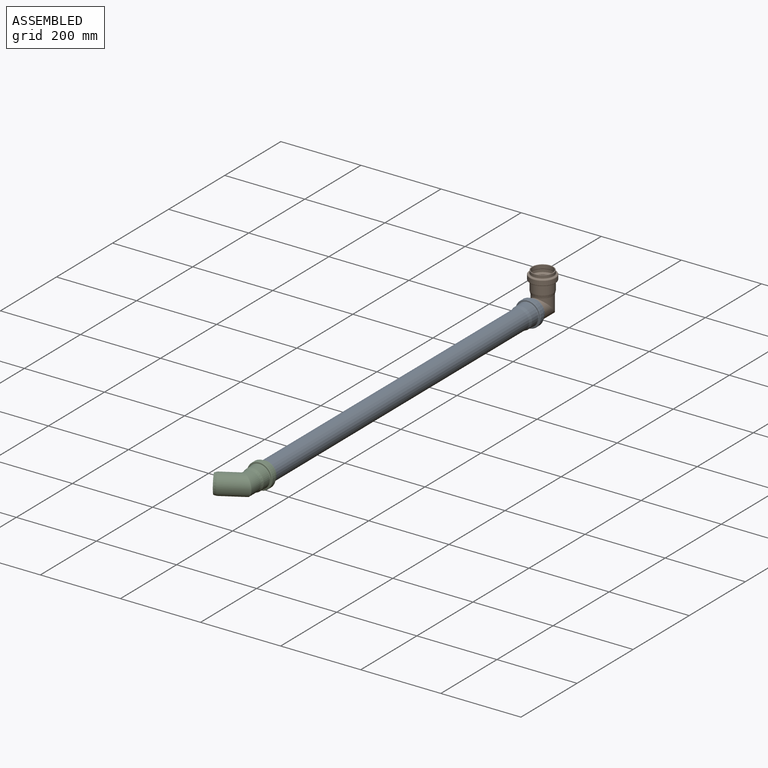
[diagram: assembled view]
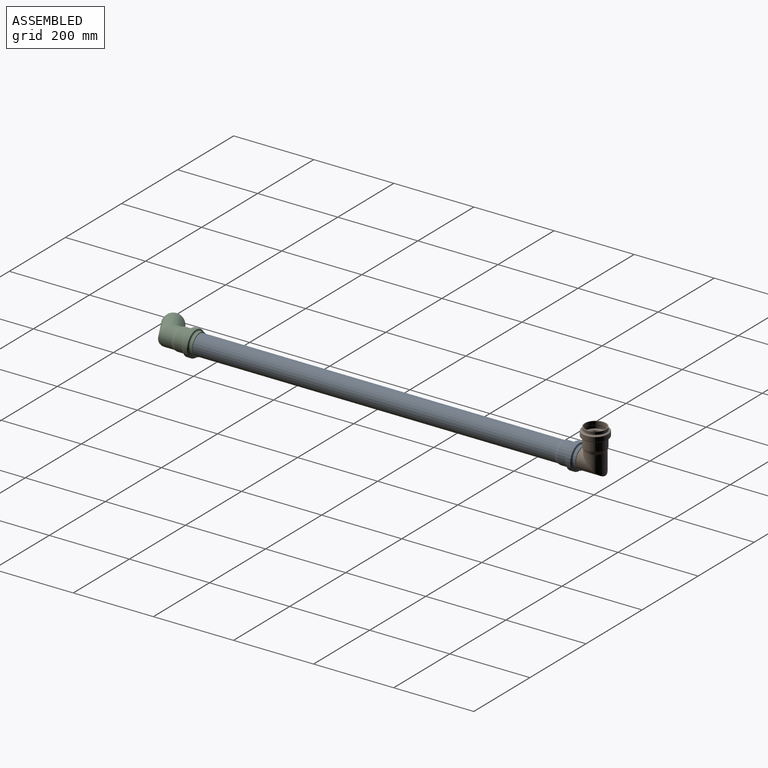
[diagram: assembled view, second angle]
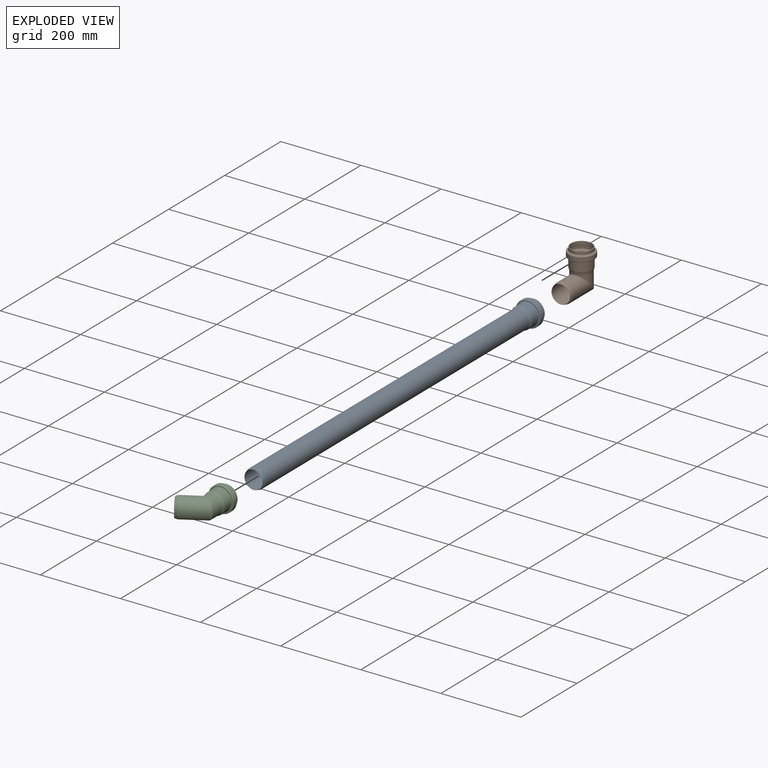
[diagram: exploded view]
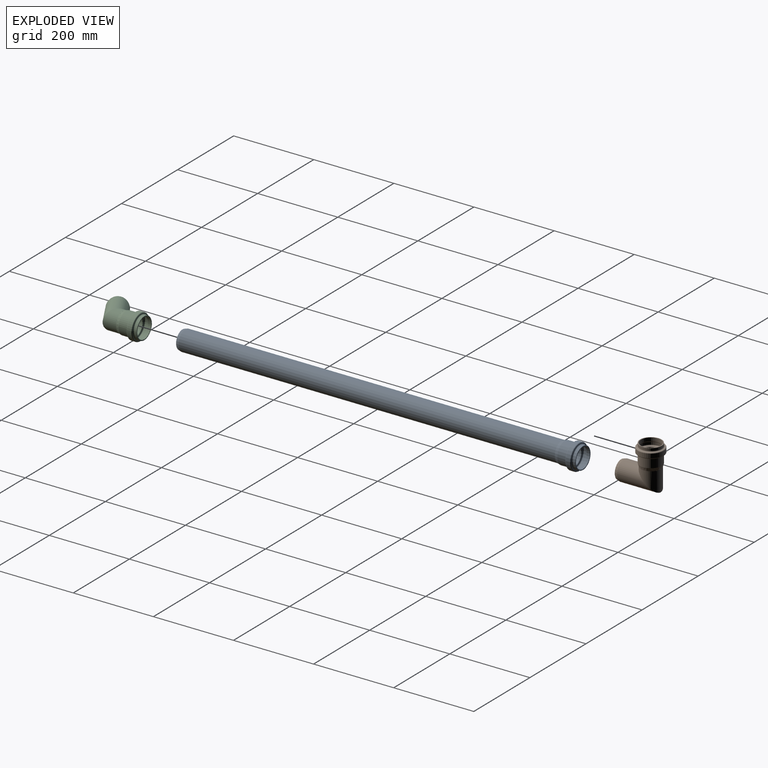
[diagram: exploded view, second angle]
ASSEMBLY  parts=3 mates=2
PART A: 25 faces, bbox 69.3x69.3x1000 mm
  f0: torus R=29mm, axis (0,0,1), area 547.3mm2, adj f1,f20
  f1: plane 60x60mm, normal (0,0,1), area 185.4mm2, adj f0,f2
  f2: torus R=30mm, axis (0,0,1), area 617.3mm2, adj f1,f3
  f3: cylinder r=32mm len=64mm, axis (0,0,1), area 2010.6mm2, adj f2,f4
  f4: torus R=30mm, axis (0,0,1), area 617.3mm2, adj f3,f5
  f5: plane 60x60mm, normal (0,0,-1), area 185.4mm2, adj f4,f6
  f6: torus R=29mm, axis (0,0,1), area 547.3mm2, adj f5,f7
  f7: cylinder r=27mm len=54mm, axis (0,0,1), area 3556.3mm2, adj f6,f8
  f8: cone r=27mm half-angle=15deg, axis (0,0,1), area 1306.6mm2, adj f7,f22
  f9: cone r=22.86mm half-angle=15deg, axis (0,0,1), area 1245.2mm2, adj f10,f21
  f10: cylinder r=25mm len=50mm, axis (0,0,1), area 3565.7mm2, adj f9,f11
  f11: torus R=27mm, axis (0,0,1), area 507.8mm2, adj f10,f12
  f12: plane 56x56mm, normal (0,0,1), area 172.8mm2, adj f11,f13
  f13: torus R=28mm, axis (0,0,1), area 577.8mm2, adj f12,f14
  f14: cylinder r=30mm len=60mm, axis (0,0,1), area 1131mm2, adj f13,f15
  f15: torus R=28mm, axis (0,0,1), area 577.8mm2, adj f14,f16
  f16: plane 56x56mm, normal (0,0,-1), area 172.8mm2, adj f15,f17
  f17: torus R=27mm, axis (0,0,1), area 507.8mm2, adj f16,f18
  f18: cylinder r=25mm len=50mm, axis (0,0,1), area 1319.5mm2, adj f17,f19
  f19: plane 54x54mm, normal (0,0,1), area 326.7mm2, adj f18,f20
  f20: cylinder r=27mm len=54mm, axis (0,0,1), area 1085.7mm2, adj f0,f19
  f21: cylinder r=22.86mm len=946.9mm, axis (0,0,1), area 135985.3mm2, adj f9,f23
  f22: cylinder r=24.93mm len=939.7mm, axis (0,0,1), area 147176.5mm2, adj f8,f24
  f23: plane 45.85x45.85mm, normal (0,0,-1), area 10.1mm2, adj f21,f24
  f24: cone r=24.93mm half-angle=15.5deg, axis (0,0,1), area 1123.4mm2, adj f22,f23
PART B: 28 faces, bbox 69.3x108.6x105.1 mm
  f0: plane 46x46mm, normal (0,0,-1), area 20.7mm2, adj f10,f22
  f1: torus R=29mm, axis (0,0,1), area 547.3mm2, adj f2,f21
  f2: plane 60x60mm, normal (0,0,1), area 185.4mm2, adj f1,f3
  f3: torus R=30mm, axis (0,0,1), area 617.3mm2, adj f2,f4
  f4: cylinder r=32mm len=64mm, axis (0,0,1), area 2010.6mm2, adj f3,f5
  f5: torus R=30mm, axis (0,0,1), area 617.3mm2, adj f4,f6
  f6: plane 60x60mm, normal (0,0,-1), area 185.4mm2, adj f5,f7
  f7: torus R=29mm, axis (0,0,1), area 547.3mm2, adj f6,f8
  f8: cylinder r=27mm len=54mm, axis (0,0,1), area 3556.3mm2, adj f7,f9
  f9: cone r=27mm half-angle=15deg, axis (0,0,1), area 1306.6mm2, adj f8,f24
  f10: cone r=22.86mm half-angle=15deg, axis (0,0,1), area 1245.2mm2, adj f0,f11
  f11: cylinder r=25mm len=50mm, axis (0,0,1), area 3565.7mm2, adj f10,f12
  f12: torus R=27mm, axis (0,0,1), area 507.8mm2, adj f11,f13
  f13: plane 56x56mm, normal (0,0,1), area 172.8mm2, adj f12,f14
  f14: torus R=28mm, axis (0,0,1), area 577.8mm2, adj f13,f15
  f15: cylinder r=30mm len=60mm, axis (0,0,1), area 1131mm2, adj f14,f16
  f16: torus R=28mm, axis (0,0,1), area 577.8mm2, adj f15,f17
  f17: plane 56x56mm, normal (0,0,-1), area 172.8mm2, adj f16,f18
  f18: torus R=27mm, axis (0,0,1), area 507.8mm2, adj f17,f19
  f19: cylinder r=25mm len=50mm, axis (0,0,1), area 1319.5mm2, adj f18,f20
  f20: plane 54x54mm, normal (0,0,1), area 326.7mm2, adj f19,f21
  f21: cylinder r=27mm len=54mm, axis (0,0,1), area 1085.7mm2, adj f1,f20
  f22: cylinder r=23mm len=50.01mm, axis (0,0,1), area 3901.9mm2, adj f0,f23
  f23: cylinder r=23mm len=97.01mm, axis (0,1,0), area 10694mm2, adj f22,f27
  f24: plane 50x50mm, normal (0,0,1), area 11.5mm2, adj f9,f25
  f25: cylinder r=25mm len=52.01mm, axis (0,0,1), area 4241.2mm2, adj f24,f26
  f26: cylinder r=25mm len=91.81mm, axis (0,1,0), area 10493mm2, adj f25,f27
  f27: cone r=25mm half-angle=15.5deg, axis (0,1,0), area 1126.8mm2, adj f23,f26
PART C: 28 faces, bbox 69.3x102.3x124.6 mm
  f0: plane 46x46mm, normal (0,0,-1), area 20.7mm2, adj f10,f22
  f1: torus R=29mm, axis (0,0,1), area 547.3mm2, adj f2,f21
  f2: plane 60x60mm, normal (0,0,1), area 185.4mm2, adj f1,f3
  f3: torus R=30mm, axis (0,0,1), area 617.3mm2, adj f2,f4
  f4: cylinder r=32mm len=64mm, axis (0,0,1), area 2010.6mm2, adj f3,f5
  f5: torus R=30mm, axis (0,0,1), area 617.3mm2, adj f4,f6
  f6: plane 60x60mm, normal (0,0,-1), area 185.4mm2, adj f5,f7
  f7: torus R=29mm, axis (0,0,1), area 547.3mm2, adj f6,f8
  f8: cylinder r=27mm len=54mm, axis (0,0,1), area 3556.3mm2, adj f7,f9
  f9: cone r=27mm half-angle=15deg, axis (0,0,1), area 1306.6mm2, adj f8,f24
  f10: cone r=22.86mm half-angle=15deg, axis (0,0,1), area 1245.2mm2, adj f0,f11
  f11: cylinder r=25mm len=50mm, axis (0,0,1), area 3565.7mm2, adj f10,f12
  f12: torus R=27mm, axis (0,0,1), area 507.8mm2, adj f11,f13
  f13: plane 56x56mm, normal (0,0,1), area 172.8mm2, adj f12,f14
  f14: torus R=28mm, axis (0,0,1), area 577.8mm2, adj f13,f15
  f15: cylinder r=30mm len=60mm, axis (0,0,1), area 1131mm2, adj f14,f16
  f16: torus R=28mm, axis (0,0,1), area 577.8mm2, adj f15,f17
  f17: plane 56x56mm, normal (0,0,-1), area 172.8mm2, adj f16,f18
  f18: torus R=27mm, axis (0,0,1), area 507.8mm2, adj f17,f19
  f19: cylinder r=25mm len=50mm, axis (0,0,1), area 1319.5mm2, adj f18,f20
  f20: plane 54x54mm, normal (0,0,1), area 326.7mm2, adj f19,f21
  f21: cylinder r=27mm len=54mm, axis (0,0,1), area 1085.7mm2, adj f1,f20
  f22: cylinder r=23mm len=46mm, axis (0,0,1), area 2760.2mm2, adj f0,f23
  f23: cylinder r=23mm len=90.71mm, axis (0,0.87,0.5), area 9378.9mm2, adj f22,f27
  f24: plane 50x50mm, normal (0,0,1), area 11.5mm2, adj f9,f25
  f25: cylinder r=25mm len=50mm, axis (0,0,1), area 3000.3mm2, adj f24,f26
  f26: cylinder r=25mm len=87.48mm, axis (0,0.87,0.5), area 9063.5mm2, adj f25,f27
  f27: cone r=25mm half-angle=15.5deg, axis (0,0.87,0.5), area 1126.8mm2, adj f23,f26
PLACE A rot(axis=(-1,0,0),90deg) t=(-45.96,-59.66,-62.39)mm
PLACE B t=(-45.96,-28.76,17.71)mm
PLACE C rot(axis=(-0.58,-0.58,-0.58),120deg) t=(-45.96,-1016.56,-62.39)mm
MATE fastened C.f1 <-> A.f0  axis (0,1,0) through (-45.96,-1061.66,-62.39)mm
MATE fastened A.f0 <-> B.f27  axis (0,1,0) through (-45.96,-104.76,-62.39)mm
